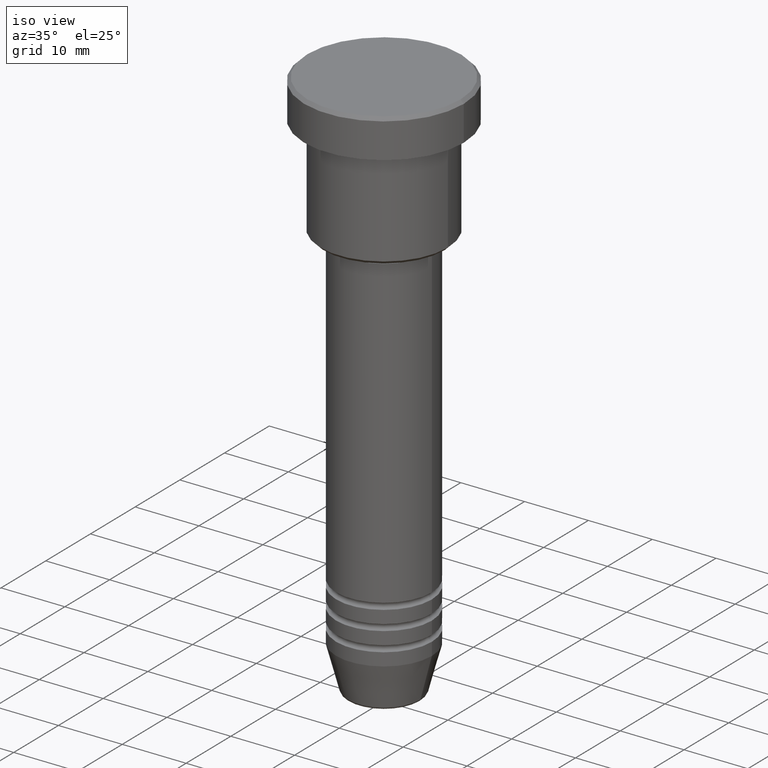
[diagram: clean part render]
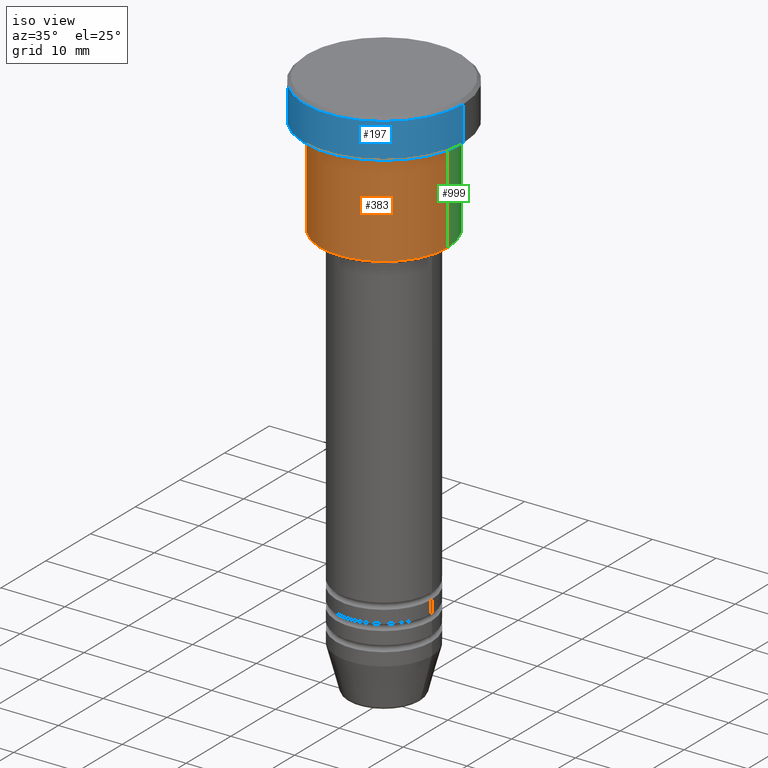
[diagram: same view with three faces highlighted in distinct colors, each labeled with its STEP entity id]
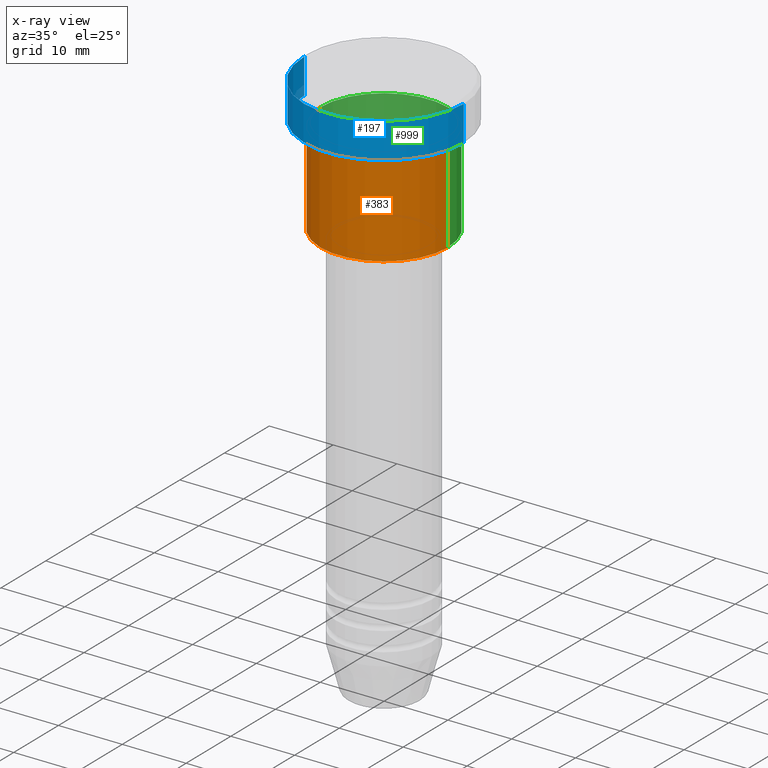
[diagram: x-ray of the same camera — body ghosted, the three highlighted faces saturated]
A machine part, iso view with three faces highlighted in distinct colors.
The next image is the same camera in x-ray (body ghosted, the three faces saturated) — at least one of them is partly hidden behind the body in this view.
Their STEP definitions:

[orange] entity #383 — the highlighted cylindrical surface (partial cylindrical patch) has radius 10 mm, axis along (-0, -0, 1).
#15 = ORIENTED_EDGE ( 'NONE', *, *, #738, .T. ) ;
#65 = DIRECTION ( 'NONE',  ( 1.000000000000000000, 0.000000000000000000, 0.000000000000000000 ) ) ;
#98 = DIRECTION ( 'NONE',  ( -0.000000000000000000, -0.000000000000000000, 1.000000000000000000 ) ) ;
#144 = DIRECTION ( 'NONE',  ( -0.000000000000000000, -0.000000000000000000, 1.000000000000000000 ) ) ;
#149 = AXIS2_PLACEMENT_3D ( 'NONE', #877, #333, #1059 ) ;
#161 = DIRECTION ( 'NONE',  ( -0.000000000000000000, -0.000000000000000000, 1.000000000000000000 ) ) ;
#176 = ORIENTED_EDGE ( 'NONE', *, *, #766, .F. ) ;
#222 = ORIENTED_EDGE ( 'NONE', *, *, #370, .F. ) ;
#224 = CYLINDRICAL_SURFACE ( 'NONE', #149, 10.00000000000000000 ) ;
#242 = CARTESIAN_POINT ( 'NONE',  ( -10.00000000000000000, 1.224646799147353256E-15, -21.49999999999999645 ) ) ;
#333 = DIRECTION ( 'NONE',  ( -0.000000000000000000, -0.000000000000000000, 1.000000000000000000 ) ) ;
#345 = CARTESIAN_POINT ( 'NONE',  ( 10.00000000000000000, 0.000000000000000000, 0.000000000000000000 ) ) ;
#350 = VECTOR ( 'NONE', #706, 1000.000000000000000 ) ;
#370 = EDGE_CURVE ( 'NONE', #774, #572, #831, .T. ) ;
#371 = AXIS2_PLACEMENT_3D ( 'NONE', #440, #161, #65 ) ;
#383 = ADVANCED_FACE ( 'NONE', ( #490 ), #224, .T. ) ;
#429 = AXIS2_PLACEMENT_3D ( 'NONE', #898, #144, #1063 ) ;
#440 = CARTESIAN_POINT ( 'NONE',  ( 0.000000000000000000, 0.000000000000000000, -6.999999999999996447 ) ) ;
#490 = FACE_OUTER_BOUND ( 'NONE', #546, .T. ) ;
#546 = EDGE_LOOP ( 'NONE', ( #222, #959, #15, #176 ) ) ;
#572 = VERTEX_POINT ( 'NONE', #623 ) ;
#599 = LINE ( 'NONE', #345, #350 ) ;
#603 = EDGE_CURVE ( 'NONE', #774, #954, #666, .T. ) ;
#614 = CARTESIAN_POINT ( 'NONE',  ( 10.00000000000000000, 0.000000000000000000, -6.999999999999996447 ) ) ;
#623 = CARTESIAN_POINT ( 'NONE',  ( -10.00000000000000000, 1.224646799147353256E-15, -6.999999999999996447 ) ) ;
#633 = VERTEX_POINT ( 'NONE', #614 ) ;
#640 = CARTESIAN_POINT ( 'NONE',  ( -10.00000000000000000, 1.224646799147353256E-15, 0.000000000000000000 ) ) ;
#666 = CIRCLE ( 'NONE', #429, 10.00000000000000000 ) ;
#706 = DIRECTION ( 'NONE',  ( -0.000000000000000000, -0.000000000000000000, 1.000000000000000000 ) ) ;
#738 = EDGE_CURVE ( 'NONE', #954, #633, #599, .T. ) ;
#766 = EDGE_CURVE ( 'NONE', #572, #633, #923, .T. ) ;
#774 = VERTEX_POINT ( 'NONE', #242 ) ;
#806 = VECTOR ( 'NONE', #98, 1000.000000000000000 ) ;
#831 = LINE ( 'NONE', #640, #806 ) ;
#877 = CARTESIAN_POINT ( 'NONE',  ( 0.000000000000000000, 0.000000000000000000, 0.000000000000000000 ) ) ;
#898 = CARTESIAN_POINT ( 'NONE',  ( 0.000000000000000000, 0.000000000000000000, -21.49999999999999645 ) ) ;
#923 = CIRCLE ( 'NONE', #371, 10.00000000000000000 ) ;
#954 = VERTEX_POINT ( 'NONE', #1116 ) ;
#959 = ORIENTED_EDGE ( 'NONE', *, *, #603, .T. ) ;
#1059 = DIRECTION ( 'NONE',  ( 1.000000000000000000, 0.000000000000000000, 0.000000000000000000 ) ) ;
#1063 = DIRECTION ( 'NONE',  ( -1.000000000000000000, 0.000000000000000000, 0.000000000000000000 ) ) ;
#1116 = CARTESIAN_POINT ( 'NONE',  ( 10.00000000000000000, 0.000000000000000000, -21.49999999999999645 ) ) ;

[blue] entity #197 — the highlighted cylindrical surface (partial cylindrical patch) has radius 12.5 mm, axis along (-0, -0, 1).
#32 = CARTESIAN_POINT ( 'NONE',  ( 12.50000000000000000, 0.000000000000000000, -0.4999999999999917843 ) ) ;
#61 = DIRECTION ( 'NONE',  ( 1.000000000000000000, 0.000000000000000000, 0.000000000000000000 ) ) ;
#126 = EDGE_CURVE ( 'NONE', #235, #464, #396, .T. ) ;
#189 = VECTOR ( 'NONE', #658, 1000.000000000000000 ) ;
#197 = ADVANCED_FACE ( 'NONE', ( #989 ), #615, .T. ) ;
#211 = CIRCLE ( 'NONE', #827, 12.50000000000000000 ) ;
#229 = CARTESIAN_POINT ( 'NONE',  ( 12.50000000000000000, 0.000000000000000000, -5.999999999999996447 ) ) ;
#235 = VERTEX_POINT ( 'NONE', #1080 ) ;
#254 = ORIENTED_EDGE ( 'NONE', *, *, #1064, .T. ) ;
#303 = CARTESIAN_POINT ( 'NONE',  ( -12.50000000000000000, 1.530808498934191521E-15, 0.000000000000000000 ) ) ;
#324 = DIRECTION ( 'NONE',  ( -0.000000000000000000, -0.000000000000000000, 1.000000000000000000 ) ) ;
#362 = DIRECTION ( 'NONE',  ( -0.000000000000000000, -0.000000000000000000, 1.000000000000000000 ) ) ;
#396 = LINE ( 'NONE', #303, #189 ) ;
#407 = AXIS2_PLACEMENT_3D ( 'NONE', #963, #362, #980 ) ;
#427 = AXIS2_PLACEMENT_3D ( 'NONE', #713, #893, #61 ) ;
#464 = VERTEX_POINT ( 'NONE', #662 ) ;
#484 = EDGE_LOOP ( 'NONE', ( #909, #254, #598, #1110 ) ) ;
#495 = CARTESIAN_POINT ( 'NONE',  ( 0.000000000000000000, 0.000000000000000000, -5.999999999999996447 ) ) ;
#519 = CIRCLE ( 'NONE', #427, 12.50000000000000000 ) ;
#525 = VERTEX_POINT ( 'NONE', #32 ) ;
#589 = EDGE_CURVE ( 'NONE', #525, #464, #519, .T. ) ;
#598 = ORIENTED_EDGE ( 'NONE', *, *, #1043, .T. ) ;
#615 = CYLINDRICAL_SURFACE ( 'NONE', #407, 12.50000000000000000 ) ;
#658 = DIRECTION ( 'NONE',  ( -0.000000000000000000, -0.000000000000000000, 1.000000000000000000 ) ) ;
#662 = CARTESIAN_POINT ( 'NONE',  ( -12.50000000000000000, 1.530808498934191521E-15, -0.4999999999999917843 ) ) ;
#713 = CARTESIAN_POINT ( 'NONE',  ( 0.000000000000000000, 0.000000000000000000, -0.4999999999999917843 ) ) ;
#827 = AXIS2_PLACEMENT_3D ( 'NONE', #495, #324, #1136 ) ;
#861 = DIRECTION ( 'NONE',  ( -0.000000000000000000, -0.000000000000000000, 1.000000000000000000 ) ) ;
#893 = DIRECTION ( 'NONE',  ( 0.000000000000000000, 0.000000000000000000, -1.000000000000000000 ) ) ;
#909 = ORIENTED_EDGE ( 'NONE', *, *, #126, .F. ) ;
#963 = CARTESIAN_POINT ( 'NONE',  ( 0.000000000000000000, 0.000000000000000000, 0.000000000000000000 ) ) ;
#980 = DIRECTION ( 'NONE',  ( 1.000000000000000000, 0.000000000000000000, 0.000000000000000000 ) ) ;
#989 = FACE_OUTER_BOUND ( 'NONE', #484, .T. ) ;
#996 = VECTOR ( 'NONE', #861, 1000.000000000000000 ) ;
#1043 = EDGE_CURVE ( 'NONE', #1085, #525, #1133, .T. ) ;
#1064 = EDGE_CURVE ( 'NONE', #235, #1085, #211, .T. ) ;
#1080 = CARTESIAN_POINT ( 'NONE',  ( -12.50000000000000000, 1.530808498934191521E-15, -5.999999999999996447 ) ) ;
#1085 = VERTEX_POINT ( 'NONE', #229 ) ;
#1110 = ORIENTED_EDGE ( 'NONE', *, *, #589, .T. ) ;
#1133 = LINE ( 'NONE', #1142, #996 ) ;
#1136 = DIRECTION ( 'NONE',  ( 1.000000000000000000, 0.000000000000000000, 0.000000000000000000 ) ) ;
#1142 = CARTESIAN_POINT ( 'NONE',  ( 12.50000000000000000, 0.000000000000000000, 0.000000000000000000 ) ) ;

[green] entity #999 — the highlighted cylindrical surface (partial cylindrical patch) has radius 10 mm, axis along (-0, -0, 1).
#16 = DIRECTION ( 'NONE',  ( -0.000000000000000000, -0.000000000000000000, 1.000000000000000000 ) ) ;
#47 = DIRECTION ( 'NONE',  ( -1.000000000000000000, 0.000000000000000000, 0.000000000000000000 ) ) ;
#81 = ORIENTED_EDGE ( 'NONE', *, *, #782, .T. ) ;
#98 = DIRECTION ( 'NONE',  ( -0.000000000000000000, -0.000000000000000000, 1.000000000000000000 ) ) ;
#103 = DIRECTION ( 'NONE',  ( 1.000000000000000000, 0.000000000000000000, 0.000000000000000000 ) ) ;
#146 = CARTESIAN_POINT ( 'NONE',  ( 0.000000000000000000, 0.000000000000000000, -21.49999999999999645 ) ) ;
#242 = CARTESIAN_POINT ( 'NONE',  ( -10.00000000000000000, 1.224646799147353256E-15, -21.49999999999999645 ) ) ;
#265 = ORIENTED_EDGE ( 'NONE', *, *, #858, .F. ) ;
#345 = CARTESIAN_POINT ( 'NONE',  ( 10.00000000000000000, 0.000000000000000000, 0.000000000000000000 ) ) ;
#350 = VECTOR ( 'NONE', #706, 1000.000000000000000 ) ;
#370 = EDGE_CURVE ( 'NONE', #774, #572, #831, .T. ) ;
#382 = ORIENTED_EDGE ( 'NONE', *, *, #370, .T. ) ;
#449 = AXIS2_PLACEMENT_3D ( 'NONE', #146, #880, #47 ) ;
#489 = CARTESIAN_POINT ( 'NONE',  ( 0.000000000000000000, 0.000000000000000000, 0.000000000000000000 ) ) ;
#543 = CIRCLE ( 'NONE', #808, 10.00000000000000000 ) ;
#567 = CYLINDRICAL_SURFACE ( 'NONE', #1108, 10.00000000000000000 ) ;
#569 = ORIENTED_EDGE ( 'NONE', *, *, #738, .F. ) ;
#572 = VERTEX_POINT ( 'NONE', #623 ) ;
#599 = LINE ( 'NONE', #345, #350 ) ;
#614 = CARTESIAN_POINT ( 'NONE',  ( 10.00000000000000000, 0.000000000000000000, -6.999999999999996447 ) ) ;
#623 = CARTESIAN_POINT ( 'NONE',  ( -10.00000000000000000, 1.224646799147353256E-15, -6.999999999999996447 ) ) ;
#633 = VERTEX_POINT ( 'NONE', #614 ) ;
#640 = CARTESIAN_POINT ( 'NONE',  ( -10.00000000000000000, 1.224646799147353256E-15, 0.000000000000000000 ) ) ;
#647 = CIRCLE ( 'NONE', #449, 10.00000000000000000 ) ;
#650 = FACE_OUTER_BOUND ( 'NONE', #659, .T. ) ;
#659 = EDGE_LOOP ( 'NONE', ( #81, #382, #265, #569 ) ) ;
#706 = DIRECTION ( 'NONE',  ( -0.000000000000000000, -0.000000000000000000, 1.000000000000000000 ) ) ;
#738 = EDGE_CURVE ( 'NONE', #954, #633, #599, .T. ) ;
#774 = VERTEX_POINT ( 'NONE', #242 ) ;
#782 = EDGE_CURVE ( 'NONE', #954, #774, #647, .T. ) ;
#806 = VECTOR ( 'NONE', #98, 1000.000000000000000 ) ;
#808 = AXIS2_PLACEMENT_3D ( 'NONE', #1097, #16, #103 ) ;
#831 = LINE ( 'NONE', #640, #806 ) ;
#852 = DIRECTION ( 'NONE',  ( -0.000000000000000000, -0.000000000000000000, 1.000000000000000000 ) ) ;
#858 = EDGE_CURVE ( 'NONE', #633, #572, #543, .T. ) ;
#880 = DIRECTION ( 'NONE',  ( -0.000000000000000000, -0.000000000000000000, 1.000000000000000000 ) ) ;
#954 = VERTEX_POINT ( 'NONE', #1116 ) ;
#999 = ADVANCED_FACE ( 'NONE', ( #650 ), #567, .T. ) ;
#1097 = CARTESIAN_POINT ( 'NONE',  ( 0.000000000000000000, 0.000000000000000000, -6.999999999999996447 ) ) ;
#1108 = AXIS2_PLACEMENT_3D ( 'NONE', #489, #852, #1120 ) ;
#1116 = CARTESIAN_POINT ( 'NONE',  ( 10.00000000000000000, 0.000000000000000000, -21.49999999999999645 ) ) ;
#1120 = DIRECTION ( 'NONE',  ( 1.000000000000000000, 0.000000000000000000, 0.000000000000000000 ) ) ;